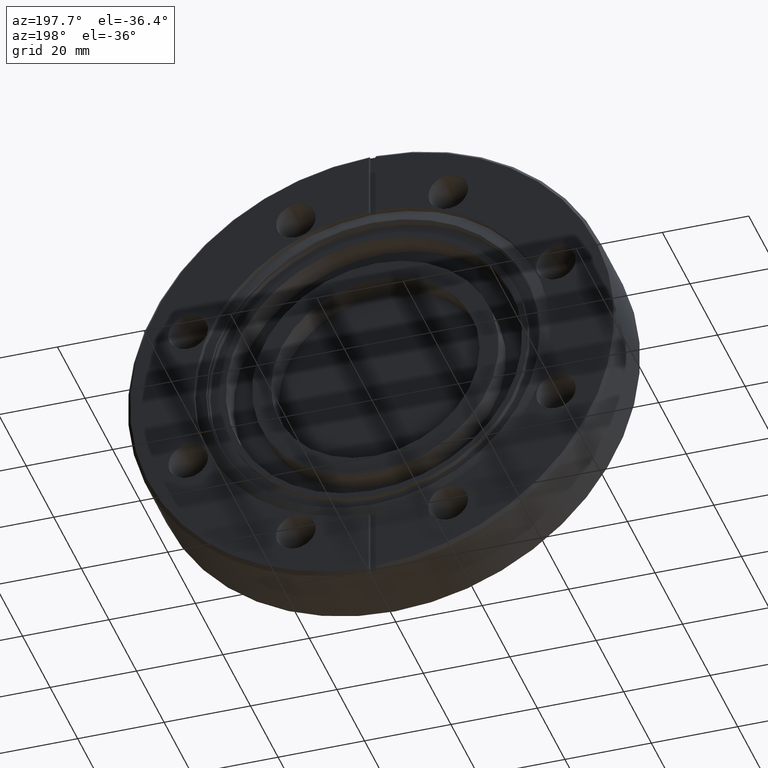
[diagram: clean part render]
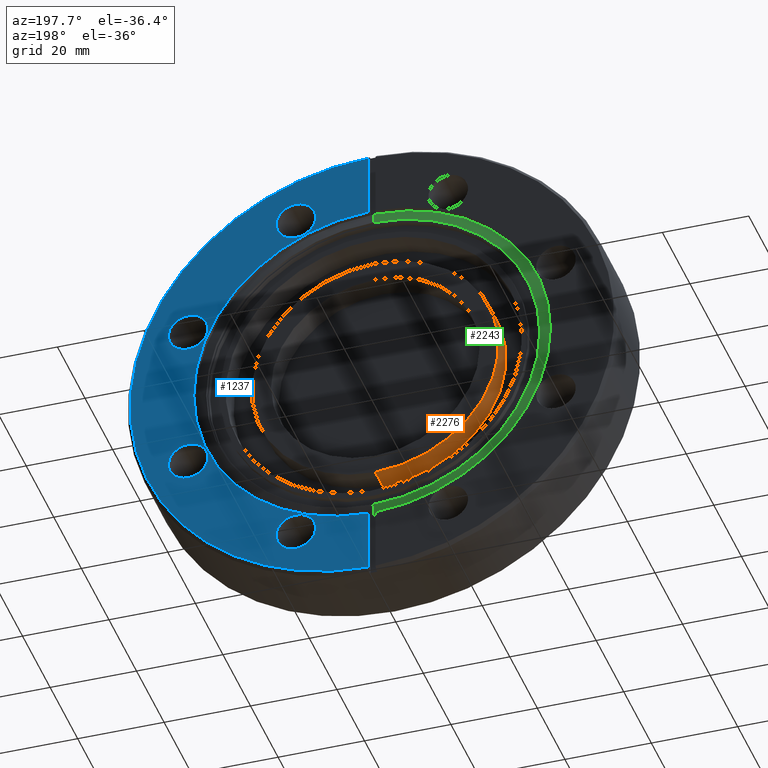
[diagram: same view with three faces highlighted in distinct colors, each labeled with its STEP entity id]
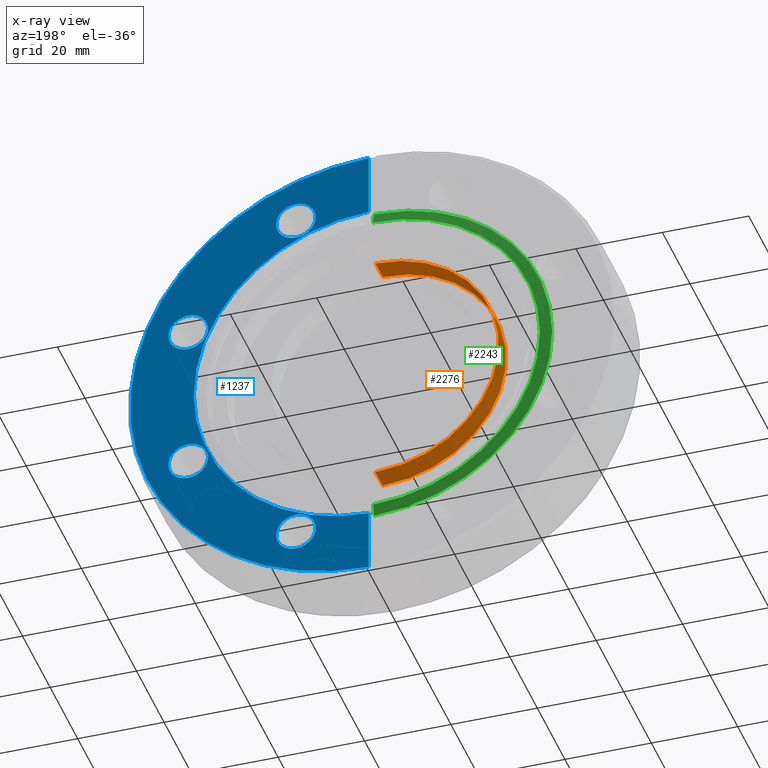
[diagram: x-ray of the same camera — body ghosted, the three highlighted faces saturated]
A machine part, auxiliary view with three faces highlighted in distinct colors.
The next image is the same camera in x-ray (body ghosted, the three faces saturated) — at least one of them is partly hidden behind the body in this view.
Their STEP definitions:

[orange] entity #2276 — the highlighted cylindrical surface (partial cylindrical patch) has radius 28.575 mm, axis along (-0, -1, -0).
#25 = CARTESIAN_POINT ( 'NONE',  ( 0.0000000000000000000, 0.5850000000000001900, -1.125000000000000000 ) ) ;
#53 = CARTESIAN_POINT ( 'NONE',  ( 0.0000000000000000000, 0.3750000000000002200, -1.125000000000000000 ) ) ;
#347 = VECTOR ( 'NONE', #1929, 39.37007874015748100 ) ;
#580 = VECTOR ( 'NONE', #1980, 39.37007874015748100 ) ;
#879 = VERTEX_POINT ( 'NONE', #25 ) ;
#912 = ORIENTED_EDGE ( 'NONE', *, *, #2244, .T. ) ;
#945 = VERTEX_POINT ( 'NONE', #53 ) ;
#1042 = VERTEX_POINT ( 'NONE', #1866 ) ;
#1050 = ORIENTED_EDGE ( 'NONE', *, *, #2296, .T. ) ;
#1140 = VERTEX_POINT ( 'NONE', #1928 ) ;
#1521 = DIRECTION ( 'NONE',  ( 0.0000000000000000000, 0.0000000000000000000, -1.000000000000000000 ) ) ;
#1522 = DIRECTION ( 'NONE',  ( -0.0000000000000000000, -1.000000000000000000, -0.0000000000000000000 ) ) ;
#1526 = CARTESIAN_POINT ( 'NONE',  ( 0.0000000000000000000, 0.3750000000000002200, 0.0000000000000000000 ) ) ;
#1534 = DIRECTION ( 'NONE',  ( 0.0000000000000000000, 0.0000000000000000000, -1.000000000000000000 ) ) ;
#1540 = DIRECTION ( 'NONE',  ( -0.0000000000000000000, -1.000000000000000000, -0.0000000000000000000 ) ) ;
#1541 = CYLINDRICAL_SURFACE ( 'NONE', #2208, 1.125000000000000000 ) ;
#1544 = CARTESIAN_POINT ( 'NONE',  ( 0.0000000000000000000, 0.2750000000000001900, 0.0000000000000000000 ) ) ;
#1563 = FACE_OUTER_BOUND ( 'NONE', #2461, .T. ) ;
#1633 = DIRECTION ( 'NONE',  ( 0.0000000000000000000, 0.0000000000000000000, -1.000000000000000000 ) ) ;
#1635 = DIRECTION ( 'NONE',  ( -0.0000000000000000000, -1.000000000000000000, -0.0000000000000000000 ) ) ;
#1636 = CARTESIAN_POINT ( 'NONE',  ( 0.0000000000000000000, 0.5850000000000001900, 0.0000000000000000000 ) ) ;
#1866 = CARTESIAN_POINT ( 'NONE',  ( 1.377727649040772400E-016, 0.3750000000000002200, 1.125000000000000000 ) ) ;
#1928 = CARTESIAN_POINT ( 'NONE',  ( 1.377727649040772400E-016, 0.5850000000000001900, 1.125000000000000000 ) ) ;
#1929 = DIRECTION ( 'NONE',  ( -0.0000000000000000000, -1.000000000000000000, -0.0000000000000000000 ) ) ;
#1938 = CARTESIAN_POINT ( 'NONE',  ( 0.0000000000000000000, 0.2750000000000001900, -1.125000000000000000 ) ) ;
#1944 = LINE ( 'NONE', #1938, #347 ) ;
#1980 = DIRECTION ( 'NONE',  ( -0.0000000000000000000, -1.000000000000000000, -0.0000000000000000000 ) ) ;
#1982 = CARTESIAN_POINT ( 'NONE',  ( 1.377727649040772400E-016, 0.2750000000000001900, 1.125000000000000000 ) ) ;
#1983 = LINE ( 'NONE', #1982, #580 ) ;
#2112 = AXIS2_PLACEMENT_3D ( 'NONE', #1636, #1635, #1633 ) ;
#2135 = CIRCLE ( 'NONE', #2163, 1.125000000000000000 ) ;
#2163 = AXIS2_PLACEMENT_3D ( 'NONE', #1526, #1522, #1521 ) ;
#2164 = CIRCLE ( 'NONE', #2112, 1.125000000000000000 ) ;
#2208 = AXIS2_PLACEMENT_3D ( 'NONE', #1544, #1540, #1534 ) ;
#2244 = EDGE_CURVE ( 'NONE', #879, #945, #1944, .T. ) ;
#2253 = EDGE_CURVE ( 'NONE', #1140, #1042, #1983, .T. ) ;
#2276 = ADVANCED_FACE ( 'NONE', ( #1563 ), #1541, .T. ) ;
#2277 = EDGE_CURVE ( 'NONE', #1042, #945, #2135, .T. ) ;
#2296 = EDGE_CURVE ( 'NONE', #1140, #879, #2164, .T. ) ;
#2380 = ORIENTED_EDGE ( 'NONE', *, *, #2277, .F. ) ;
#2394 = ORIENTED_EDGE ( 'NONE', *, *, #2253, .F. ) ;
#2461 = EDGE_LOOP ( 'NONE', ( #2394, #1050, #912, #2380 ) ) ;

[blue] entity #1237 — the highlighted planar face has unit normal (-0, 1, 0).
#28 = CARTESIAN_POINT ( 'NONE',  ( 0.6941877463102622500, 0.6759999999999999300, 1.496066348501516400 ) ) ;
#59 = CARTESIAN_POINT ( 'NONE',  ( 0.03099999999999999600, 0.6759999999999999300, 2.204782075398835900 ) ) ;
#61 = CARTESIAN_POINT ( 'NONE',  ( 0.6941877463102746900, 0.6759999999999999300, -1.855768595449435800 ) ) ;
#86 = CARTESIAN_POINT ( 'NONE',  ( 1.675917471975471000, 0.6759999999999999300, 0.5143366228363183100 ) ) ;
#141 = CARTESIAN_POINT ( 'NONE',  ( 0.6941877463102746900, 0.6759999999999999300, -1.496066348501511100 ) ) ;
#169 = DIRECTION ( 'NONE',  ( -1.000000000000000000, 0.0000000000000000000, -3.797374101557617400E-015 ) ) ;
#170 = DIRECTION ( 'NONE',  ( 0.0000000000000000000, 1.000000000000000000, 0.0000000000000000000 ) ) ;
#171 = CARTESIAN_POINT ( 'NONE',  ( 1.675917471975476100, 0.6759999999999999300, -0.6941877463102681400 ) ) ;
#285 = FACE_BOUND ( 'NONE', #2547, .T. ) ;
#287 = DIRECTION ( 'NONE',  ( -0.0000000000000000000, 1.000000000000000000, 0.0000000000000000000 ) ) ;
#288 = FACE_BOUND ( 'NONE', #2535, .T. ) ;
#289 = CARTESIAN_POINT ( 'NONE',  ( -2.204999999999999600, 0.6759999999999999300, -2.547736418603577800E-017 ) ) ;
#290 = FACE_BOUND ( 'NONE', #2499, .T. ) ;
#292 = FACE_BOUND ( 'NONE', #2530, .T. ) ;
#293 = FACE_OUTER_BOUND ( 'NONE', #2559, .T. ) ;
#298 = PLANE ( 'NONE',  #398 ) ;
#346 = AXIS2_PLACEMENT_3D ( 'NONE', #1811, #1810, #1809 ) ;
#355 = CIRCLE ( 'NONE', #432, 0.1798511234739621500 ) ;
#359 = AXIS2_PLACEMENT_3D ( 'NONE', #1747, #1746, #1745 ) ;
#396 = AXIS2_PLACEMENT_3D ( 'NONE', #171, #170, #169 ) ;
#398 = AXIS2_PLACEMENT_3D ( 'NONE', #289, #287, #1517 ) ;
#431 = AXIS2_PLACEMENT_3D ( 'NONE', #1805, #1804, #1803 ) ;
#432 = AXIS2_PLACEMENT_3D ( 'NONE', #1826, #1825, #1823 ) ;
#440 = CIRCLE ( 'NONE', #445, 1.625000000000000000 ) ;
#441 = CIRCLE ( 'NONE', #449, 0.1798511234739622600 ) ;
#444 = CIRCLE ( 'NONE', #447, 0.1798511234739623200 ) ;
#445 = AXIS2_PLACEMENT_3D ( 'NONE', #729, #728, #727 ) ;
#446 = VECTOR ( 'NONE', #709, 39.37007874015748100 ) ;
#447 = AXIS2_PLACEMENT_3D ( 'NONE', #725, #724, #723 ) ;
#448 = VECTOR ( 'NONE', #717, 39.37007874015748100 ) ;
#449 = AXIS2_PLACEMENT_3D ( 'NONE', #721, #720, #719 ) ;
#496 = AXIS2_PLACEMENT_3D ( 'NONE', #1399, #1267, #1395 ) ;
#508 = CIRCLE ( 'NONE', #496, 0.1798511234739623200 ) ;
#543 = CIRCLE ( 'NONE', #431, 2.204999999999999600 ) ;
#576 = CIRCLE ( 'NONE', #359, 0.1798511234739622600 ) ;
#579 = CIRCLE ( 'NONE', #396, 0.1798511234739623200 ) ;
#607 = AXIS2_PLACEMENT_3D ( 'NONE', #775, #774, #773 ) ;
#615 = CIRCLE ( 'NONE', #346, 0.1798511234739623200 ) ;
#658 = CIRCLE ( 'NONE', #607, 0.1798511234739621500 ) ;
#671 = EDGE_CURVE ( 'NONE', #887, #1362, #508, .T. ) ;
#709 = DIRECTION ( 'NONE',  ( 1.119461697378283100E-016, 0.0000000000000000000, -1.000000000000000000 ) ) ;
#713 = LINE ( 'NONE', #722, #446 ) ;
#717 = DIRECTION ( 'NONE',  ( -0.0000000000000000000, -0.0000000000000000000, -1.000000000000000000 ) ) ;
#719 = DIRECTION ( 'NONE',  ( -0.7071067811865441300, 0.0000000000000000000, -0.7071067811865509000 ) ) ;
#720 = DIRECTION ( 'NONE',  ( 0.0000000000000000000, 1.000000000000000000, 0.0000000000000000000 ) ) ;
#721 = CARTESIAN_POINT ( 'NONE',  ( 1.675917471975471000, 0.6759999999999999300, 0.6941877463102804600 ) ) ;
#722 = CARTESIAN_POINT ( 'NONE',  ( 0.03099999999999998900, 0.6759999999999999300, 2.234785000844600400 ) ) ;
#723 = DIRECTION ( 'NONE',  ( 6.835273382803712400E-015, 0.0000000000000000000, -1.000000000000000000 ) ) ;
#724 = DIRECTION ( 'NONE',  ( 0.0000000000000000000, 1.000000000000000000, 0.0000000000000000000 ) ) ;
#725 = CARTESIAN_POINT ( 'NONE',  ( 0.6941877463102622500, 0.6759999999999999300, 1.675917471975478600 ) ) ;
#726 = CARTESIAN_POINT ( 'NONE',  ( 0.03099999999999944500, 0.6759999999999999300, -2.234785000844600400 ) ) ;
#727 = DIRECTION ( 'NONE',  ( 0.0000000000000000000, 0.0000000000000000000, 1.000000000000000000 ) ) ;
#728 = DIRECTION ( 'NONE',  ( -0.0000000000000000000, 1.000000000000000000, -0.0000000000000000000 ) ) ;
#729 = CARTESIAN_POINT ( 'NONE',  ( -1.044704384978681700E-018, 0.6759999999999999300, -2.547736418603577800E-017 ) ) ;
#734 = LINE ( 'NONE', #726, #448 ) ;
#773 = DIRECTION ( 'NONE',  ( -0.7071067811865490200, 0.0000000000000000000, 0.7071067811865460200 ) ) ;
#774 = DIRECTION ( 'NONE',  ( 0.0000000000000000000, 1.000000000000000000, 0.0000000000000000000 ) ) ;
#775 = CARTESIAN_POINT ( 'NONE',  ( 0.6941877463102746900, 0.6759999999999999300, -1.675917471975473500 ) ) ;
#869 = VERTEX_POINT ( 'NONE', #141 ) ;
#887 = VERTEX_POINT ( 'NONE', #28 ) ;
#890 = VERTEX_POINT ( 'NONE', #59 ) ;
#930 = VERTEX_POINT ( 'NONE', #61 ) ;
#934 = VERTEX_POINT ( 'NONE', #86 ) ;
#973 = VERTEX_POINT ( 'NONE', #1916 ) ;
#1019 = VERTEX_POINT ( 'NONE', #1894 ) ;
#1024 = ORIENTED_EDGE ( 'NONE', *, *, #2100, .F. ) ;
#1034 = VERTEX_POINT ( 'NONE', #1869 ) ;
#1059 = ORIENTED_EDGE ( 'NONE', *, *, #1212, .F. ) ;
#1101 = VERTEX_POINT ( 'NONE', #1838 ) ;
#1111 = ORIENTED_EDGE ( 'NONE', *, *, #1200, .F. ) ;
#1114 = VERTEX_POINT ( 'NONE', #1818 ) ;
#1200 = EDGE_CURVE ( 'NONE', #869, #930, #355, .T. ) ;
#1203 = EDGE_CURVE ( 'NONE', #1114, #1344, #615, .T. ) ;
#1204 = EDGE_CURVE ( 'NONE', #890, #1034, #543, .T. ) ;
#1211 = EDGE_CURVE ( 'NONE', #1101, #1019, #440, .T. ) ;
#1212 = EDGE_CURVE ( 'NONE', #1362, #887, #444, .T. ) ;
#1213 = EDGE_CURVE ( 'NONE', #973, #934, #441, .T. ) ;
#1214 = EDGE_CURVE ( 'NONE', #1019, #1034, #734, .T. ) ;
#1216 = EDGE_CURVE ( 'NONE', #890, #1101, #713, .T. ) ;
#1237 = ADVANCED_FACE ( 'NONE', ( #292, #290, #288, #285, #293 ), #298, .T. ) ;
#1267 = DIRECTION ( 'NONE',  ( 0.0000000000000000000, 1.000000000000000000, 0.0000000000000000000 ) ) ;
#1344 = VERTEX_POINT ( 'NONE', #1468 ) ;
#1362 = VERTEX_POINT ( 'NONE', #1467 ) ;
#1395 = DIRECTION ( 'NONE',  ( 6.835273382803712400E-015, 0.0000000000000000000, -1.000000000000000000 ) ) ;
#1399 = CARTESIAN_POINT ( 'NONE',  ( 0.6941877463102622500, 0.6759999999999999300, 1.675917471975478600 ) ) ;
#1467 = CARTESIAN_POINT ( 'NONE',  ( 0.6941877463102622500, 0.6759999999999999300, 1.855768595449440900 ) ) ;
#1468 = CARTESIAN_POINT ( 'NONE',  ( 1.675917471975476100, 0.6759999999999999300, -0.8740388697842304000 ) ) ;
#1517 = DIRECTION ( 'NONE',  ( 0.0000000000000000000, 0.0000000000000000000, 1.000000000000000000 ) ) ;
#1745 = DIRECTION ( 'NONE',  ( -0.7071067811865441300, 0.0000000000000000000, -0.7071067811865509000 ) ) ;
#1746 = DIRECTION ( 'NONE',  ( 0.0000000000000000000, 1.000000000000000000, 0.0000000000000000000 ) ) ;
#1747 = CARTESIAN_POINT ( 'NONE',  ( 1.675917471975471000, 0.6759999999999999300, 0.6941877463102804600 ) ) ;
#1803 = DIRECTION ( 'NONE',  ( 0.0000000000000000000, 0.0000000000000000000, 1.000000000000000000 ) ) ;
#1804 = DIRECTION ( 'NONE',  ( -0.0000000000000000000, 1.000000000000000000, -0.0000000000000000000 ) ) ;
#1805 = CARTESIAN_POINT ( 'NONE',  ( -1.044704384978681700E-018, 0.6759999999999999300, -2.547736418603577800E-017 ) ) ;
#1809 = DIRECTION ( 'NONE',  ( -1.000000000000000000, 0.0000000000000000000, -3.797374101557617400E-015 ) ) ;
#1810 = DIRECTION ( 'NONE',  ( 0.0000000000000000000, 1.000000000000000000, 0.0000000000000000000 ) ) ;
#1811 = CARTESIAN_POINT ( 'NONE',  ( 1.675917471975476100, 0.6759999999999999300, -0.6941877463102681400 ) ) ;
#1818 = CARTESIAN_POINT ( 'NONE',  ( 1.675917471975476100, 0.6759999999999999300, -0.5143366228363059900 ) ) ;
#1823 = DIRECTION ( 'NONE',  ( -0.7071067811865490200, 0.0000000000000000000, 0.7071067811865460200 ) ) ;
#1825 = DIRECTION ( 'NONE',  ( 0.0000000000000000000, 1.000000000000000000, 0.0000000000000000000 ) ) ;
#1826 = CARTESIAN_POINT ( 'NONE',  ( 0.6941877463102746900, 0.6759999999999999300, -1.675917471975473500 ) ) ;
#1838 = CARTESIAN_POINT ( 'NONE',  ( 0.03099999999999988900, 0.6759999999999999300, 1.624704280784660100 ) ) ;
#1869 = CARTESIAN_POINT ( 'NONE',  ( 0.03099999999999944500, 0.6759999999999999300, -2.204782075398835900 ) ) ;
#1894 = CARTESIAN_POINT ( 'NONE',  ( 0.03099999999999944500, 0.6759999999999999300, -1.624704280784660100 ) ) ;
#1916 = CARTESIAN_POINT ( 'NONE',  ( 1.675917471975471000, 0.6759999999999999300, 0.8740388697842426100 ) ) ;
#2079 = EDGE_CURVE ( 'NONE', #934, #973, #576, .T. ) ;
#2092 = EDGE_CURVE ( 'NONE', #1344, #1114, #579, .T. ) ;
#2100 = EDGE_CURVE ( 'NONE', #930, #869, #658, .T. ) ;
#2337 = ORIENTED_EDGE ( 'NONE', *, *, #2079, .F. ) ;
#2359 = ORIENTED_EDGE ( 'NONE', *, *, #1203, .F. ) ;
#2370 = ORIENTED_EDGE ( 'NONE', *, *, #1211, .F. ) ;
#2390 = ORIENTED_EDGE ( 'NONE', *, *, #1214, .F. ) ;
#2407 = ORIENTED_EDGE ( 'NONE', *, *, #1216, .F. ) ;
#2409 = ORIENTED_EDGE ( 'NONE', *, *, #1213, .F. ) ;
#2428 = ORIENTED_EDGE ( 'NONE', *, *, #671, .F. ) ;
#2451 = ORIENTED_EDGE ( 'NONE', *, *, #1204, .T. ) ;
#2472 = ORIENTED_EDGE ( 'NONE', *, *, #2092, .F. ) ;
#2499 = EDGE_LOOP ( 'NONE', ( #2409, #2337 ) ) ;
#2530 = EDGE_LOOP ( 'NONE', ( #1059, #2428 ) ) ;
#2535 = EDGE_LOOP ( 'NONE', ( #2359, #2472 ) ) ;
#2547 = EDGE_LOOP ( 'NONE', ( #1111, #1024 ) ) ;
#2559 = EDGE_LOOP ( 'NONE', ( #2390, #2370, #2407, #2451 ) ) ;

[green] entity #2243 — the highlighted conical surface has half-angle 76.608 deg.
#1 = DIRECTION ( 'NONE',  ( 0.0000000000000000000, 0.0000000000000000000, 1.000000000000000000 ) ) ;
#32 = DIRECTION ( 'NONE',  ( -0.0000000000000000000, -1.000000000000000000, -0.0000000000000000000 ) ) ;
#62 = CARTESIAN_POINT ( 'NONE',  ( -1.044704384978681700E-018, 0.6250000000000000000, -2.547736418603577800E-017 ) ) ;
#100 = CARTESIAN_POINT ( 'NONE',  ( -1.044704384978681700E-018, 0.6250000000000000000, -1.625000000000000000 ) ) ;
#312 = DIRECTION ( 'NONE',  ( 0.0000000000000000000, 0.0000000000000000000, 1.000000000000000000 ) ) ;
#313 = DIRECTION ( 'NONE',  ( -0.0000000000000000000, -1.000000000000000000, -0.0000000000000000000 ) ) ;
#314 = CARTESIAN_POINT ( 'NONE',  ( -1.044704384978681700E-018, 0.6250000000000000000, -2.547736418603577800E-017 ) ) ;
#316 = DIRECTION ( 'NONE',  ( 0.0000000000000000000, 0.0000000000000000000, 1.000000000000000000 ) ) ;
#317 = DIRECTION ( 'NONE',  ( -0.0000000000000000000, 1.000000000000000000, -0.0000000000000000000 ) ) ;
#319 = CARTESIAN_POINT ( 'NONE',  ( -1.044704384978681700E-018, 0.6250000000000000000, -2.547736418603577800E-017 ) ) ;
#373 = CONICAL_SURFACE ( 'NONE', #376, 1.519999999999999800, 1.337053145925995300 ) ;
#376 = AXIS2_PLACEMENT_3D ( 'NONE', #1964, #1942, #1961 ) ;
#394 = CIRCLE ( 'NONE', #559, 1.519999999999999800 ) ;
#472 = CIRCLE ( 'NONE', #637, 1.625000000000000000 ) ;
#502 = VECTOR ( 'NONE', #1326, 39.37007874015748100 ) ;
#529 = CIRCLE ( 'NONE', #542, 1.625000000000000000 ) ;
#542 = AXIS2_PLACEMENT_3D ( 'NONE', #62, #32, #1 ) ;
#559 = AXIS2_PLACEMENT_3D ( 'NONE', #1902, #1901, #1900 ) ;
#574 = CIRCLE ( 'NONE', #603, 1.625000000000000000 ) ;
#596 = VECTOR ( 'NONE', #1831, 39.37007874015748100 ) ;
#603 = AXIS2_PLACEMENT_3D ( 'NONE', #319, #317, #316 ) ;
#637 = AXIS2_PLACEMENT_3D ( 'NONE', #314, #313, #312 ) ;
#668 = EDGE_CURVE ( 'NONE', #1025, #1343, #1321, .T. ) ;
#850 = EDGE_CURVE ( 'NONE', #1249, #929, #529, .T. ) ;
#929 = VERTEX_POINT ( 'NONE', #100 ) ;
#998 = VERTEX_POINT ( 'NONE', #1893 ) ;
#1025 = VERTEX_POINT ( 'NONE', #1879 ) ;
#1033 = VERTEX_POINT ( 'NONE', #1862 ) ;
#1051 = ORIENTED_EDGE ( 'NONE', *, *, #1159, .F. ) ;
#1159 = EDGE_CURVE ( 'NONE', #1033, #1025, #394, .T. ) ;
#1170 = EDGE_CURVE ( 'NONE', #1033, #929, #1850, .T. ) ;
#1231 = EDGE_CURVE ( 'NONE', #1249, #998, #574, .T. ) ;
#1232 = EDGE_CURVE ( 'NONE', #1343, #998, #472, .T. ) ;
#1249 = VERTEX_POINT ( 'NONE', #1476 ) ;
#1321 = LINE ( 'NONE', #1330, #502 ) ;
#1326 = DIRECTION ( 'NONE',  ( 1.191344017005087500E-016, -0.2316205273060396000, 0.9728062146853668800 ) ) ;
#1330 = CARTESIAN_POINT ( 'NONE',  ( 1.851016090854189900E-016, 0.6500000000000000200, 1.519999999999999800 ) ) ;
#1343 = VERTEX_POINT ( 'NONE', #1470 ) ;
#1470 = CARTESIAN_POINT ( 'NONE',  ( 1.979604004764662100E-016, 0.6250000000000000000, 1.625000000000000000 ) ) ;
#1476 = CARTESIAN_POINT ( 'NONE',  ( -0.03099999999999969100, 0.6250000000000000000, -1.624704280784660100 ) ) ;
#1831 = DIRECTION ( 'NONE',  ( 0.0000000000000000000, -0.2316205273060396000, -0.9728062146853668800 ) ) ;
#1839 = CARTESIAN_POINT ( 'NONE',  ( -1.044704384978681700E-018, 0.6500000000000000200, -1.519999999999999800 ) ) ;
#1850 = LINE ( 'NONE', #1839, #596 ) ;
#1862 = CARTESIAN_POINT ( 'NONE',  ( 1.851016090854189900E-016, 0.6500000000000000200, -1.519999999999999800 ) ) ;
#1879 = CARTESIAN_POINT ( 'NONE',  ( -1.044704384978681700E-018, 0.6500000000000000200, 1.519999999999999800 ) ) ;
#1893 = CARTESIAN_POINT ( 'NONE',  ( -0.03100000000000005900, 0.6250000000000000000, 1.624704280784660100 ) ) ;
#1900 = DIRECTION ( 'NONE',  ( 0.0000000000000000000, 0.0000000000000000000, 1.000000000000000000 ) ) ;
#1901 = DIRECTION ( 'NONE',  ( -0.0000000000000000000, 1.000000000000000000, -0.0000000000000000000 ) ) ;
#1902 = CARTESIAN_POINT ( 'NONE',  ( -1.044704384978681700E-018, 0.6500000000000000200, -2.547736418603577800E-017 ) ) ;
#1942 = DIRECTION ( 'NONE',  ( 0.0000000000000000000, -1.000000000000000000, 0.0000000000000000000 ) ) ;
#1961 = DIRECTION ( 'NONE',  ( 0.0000000000000000000, 0.0000000000000000000, -1.000000000000000000 ) ) ;
#1964 = CARTESIAN_POINT ( 'NONE',  ( -1.044704384978681700E-018, 0.6500000000000000200, -2.547736418603577800E-017 ) ) ;
#1972 = FACE_OUTER_BOUND ( 'NONE', #2526, .T. ) ;
#2243 = ADVANCED_FACE ( 'NONE', ( #1972 ), #373, .T. ) ;
#2347 = ORIENTED_EDGE ( 'NONE', *, *, #850, .F. ) ;
#2371 = ORIENTED_EDGE ( 'NONE', *, *, #1232, .F. ) ;
#2388 = ORIENTED_EDGE ( 'NONE', *, *, #1170, .T. ) ;
#2445 = ORIENTED_EDGE ( 'NONE', *, *, #1231, .T. ) ;
#2480 = ORIENTED_EDGE ( 'NONE', *, *, #668, .F. ) ;
#2526 = EDGE_LOOP ( 'NONE', ( #2480, #1051, #2388, #2347, #2445, #2371 ) ) ;